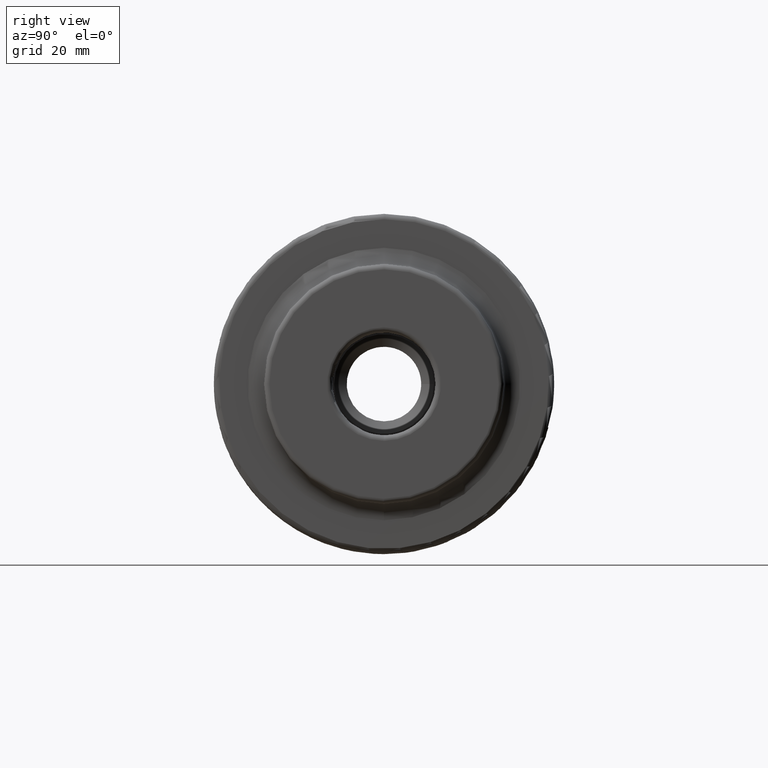
[diagram: clean part render]
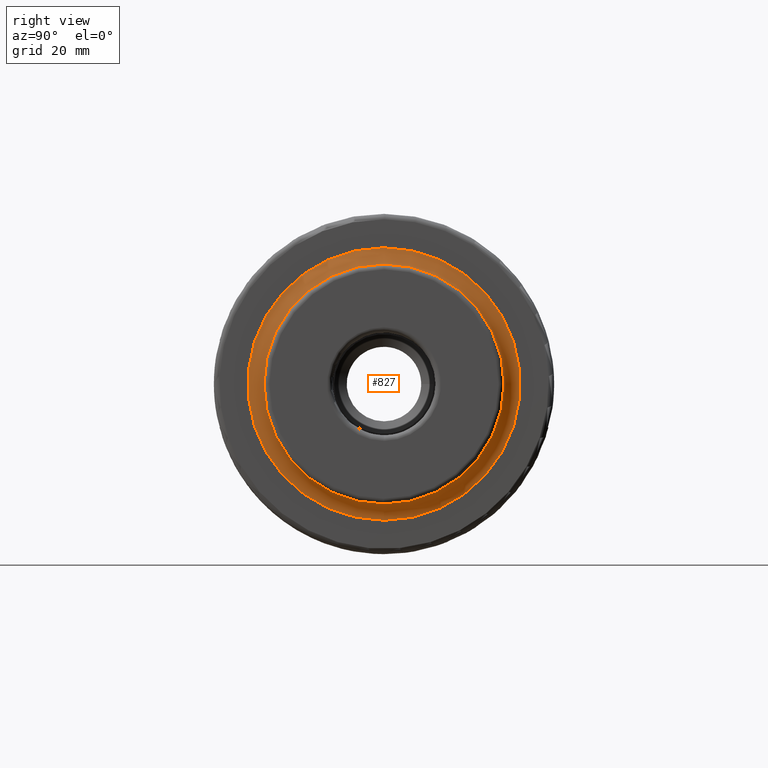
[diagram: same view with one face highlighted and labeled with its STEP entity id]
A machine part, right view. The second image highlights one B-rep face of the part: STEP entity #827.
In plain terms, the highlighted toroidal blend (fillet) surface has major radius 25.225 mm and minor (blend) radius 3 mm.
Its self-contained STEP definition (entity closure, byte-faithful):
#39=TOROIDAL_SURFACE('',#915,25.225,3.);
#89=FACE_OUTER_BOUND('',#142,.T.);
#142=EDGE_LOOP('',(#586,#587,#588,#589,#590));
#289=CIRCLE('',#907,22.225);
#290=CIRCLE('',#908,22.225);
#295=CIRCLE('',#916,3.);
#296=CIRCLE('',#917,25.225);
#351=VERTEX_POINT('',#1345);
#352=VERTEX_POINT('',#1346);
#356=VERTEX_POINT('',#1361);
#437=EDGE_CURVE('',#351,#352,#289,.T.);
#438=EDGE_CURVE('',#352,#351,#290,.T.);
#445=EDGE_CURVE('',#351,#356,#295,.T.);
#446=EDGE_CURVE('',#356,#356,#296,.T.);
#586=ORIENTED_EDGE('',*,*,#437,.T.);
#587=ORIENTED_EDGE('',*,*,#438,.T.);
#588=ORIENTED_EDGE('',*,*,#445,.T.);
#589=ORIENTED_EDGE('',*,*,#446,.T.);
#590=ORIENTED_EDGE('',*,*,#445,.F.);
#827=ADVANCED_FACE('',(#89),#39,.F.);
#907=AXIS2_PLACEMENT_3D('',#1347,#1037,#1038);
#908=AXIS2_PLACEMENT_3D('',#1348,#1039,#1040);
#915=AXIS2_PLACEMENT_3D('',#1360,#1055,#1056);
#916=AXIS2_PLACEMENT_3D('',#1362,#1057,#1058);
#917=AXIS2_PLACEMENT_3D('',#1363,#1059,#1060);
#1037=DIRECTION('center_axis',(-1.,0.,0.));
#1038=DIRECTION('ref_axis',(0.,1.,1.22464679914735E-16));
#1039=DIRECTION('center_axis',(-1.,0.,0.));
#1040=DIRECTION('ref_axis',(0.,1.,1.22464679914735E-16));
#1055=DIRECTION('center_axis',(-1.,0.,0.));
#1056=DIRECTION('ref_axis',(0.,0.,1.));
#1057=DIRECTION('center_axis',(0.,-1.,1.22464679914735E-16));
#1058=DIRECTION('ref_axis',(0.,-1.22464679914735E-16,-1.));
#1059=DIRECTION('center_axis',(1.,0.,0.));
#1060=DIRECTION('ref_axis',(0.,1.,1.22464679914735E-16));
#1345=CARTESIAN_POINT('',(30.,-2.72177751110499E-15,-22.225));
#1346=CARTESIAN_POINT('',(30.,22.225,-2.72177751110499E-15));
#1347=CARTESIAN_POINT('Origin',(30.,0.,0.));
#1348=CARTESIAN_POINT('Origin',(30.,0.,0.));
#1360=CARTESIAN_POINT('Origin',(30.,0.,0.));
#1361=CARTESIAN_POINT('',(27.,-3.0891715508492E-15,-25.225));
#1362=CARTESIAN_POINT('Origin',(30.,-3.0891715508492E-15,-25.225));
#1363=CARTESIAN_POINT('Origin',(27.,0.,0.));